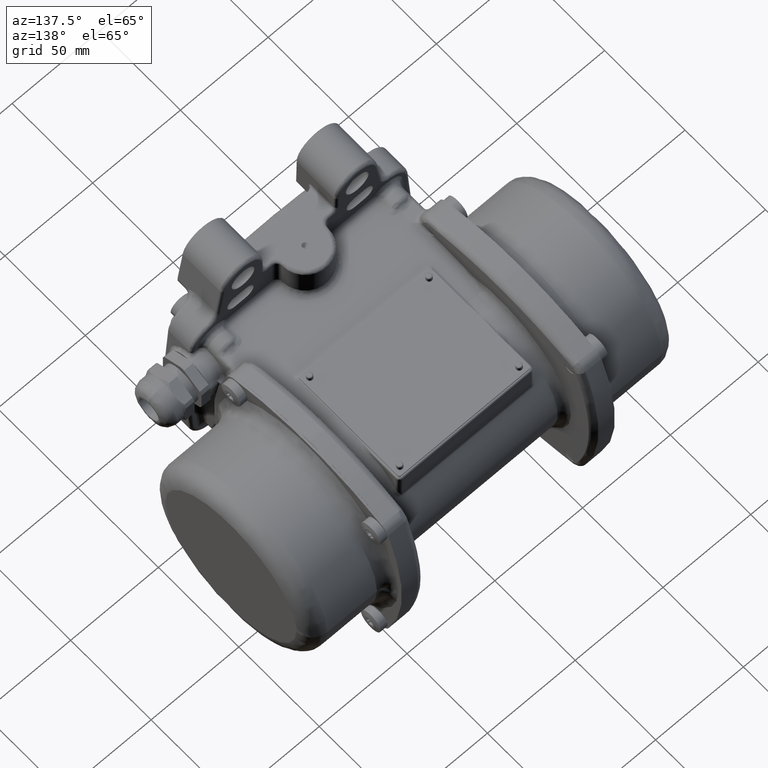
[diagram: clean part render]
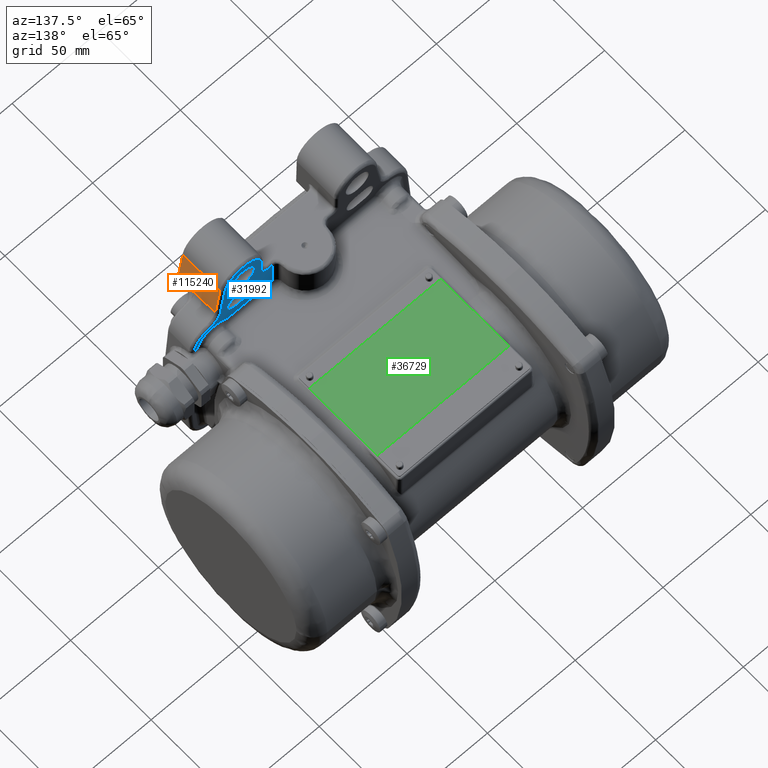
[diagram: same view with three faces highlighted in distinct colors, each labeled with its STEP entity id]
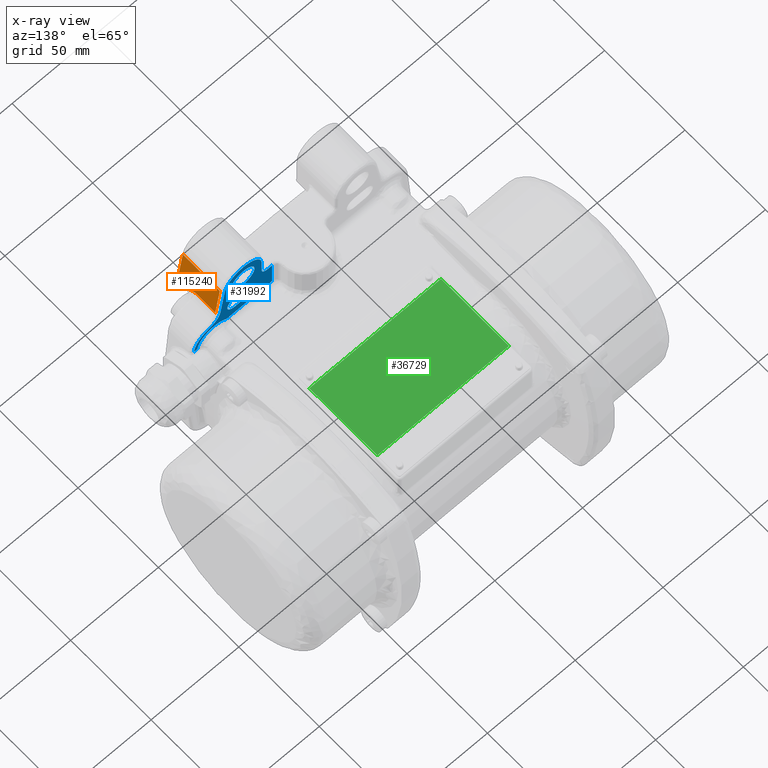
[diagram: x-ray of the same camera — body ghosted, the three highlighted faces saturated]
A machine part, auxiliary view with three faces highlighted in distinct colors.
The next image is the same camera in x-ray (body ghosted, the three faces saturated) — at least one of them is partly hidden behind the body in this view.
Their STEP definitions:

[orange] entity #115240 — the highlighted planar face has unit normal (-0.989, -0, -0.1478).
#15651 = ORIENTED_EDGE ( 'NONE', *, *, #183779, .F. ) ;
#17537 = CARTESIAN_POINT ( 'NONE',  ( 46.99434318488923900, -85.00000000000000000, 54.20171407881812100 ) ) ;
#18306 = CARTESIAN_POINT ( 'NONE',  ( 47.32451888954725700, -71.00000000000002800, 51.99245685285470800 ) ) ;
#19754 = EDGE_CURVE ( 'NONE', #136487, #172394, #90074, .T. ) ;
#24012 = CARTESIAN_POINT ( 'NONE',  ( 47.04793684488174000, -85.87407511055901900, 53.84311052642494400 ) ) ;
#24329 = CARTESIAN_POINT ( 'NONE',  ( 46.99434318488923900, -72.50000000000001400, 54.20171407881811400 ) ) ;
#30114 = DIRECTION ( 'NONE',  ( -0.1478094111296107700, 9.622817002989612100E-018, 0.9890158633619168200 ) ) ;
#38346 = CARTESIAN_POINT ( 'NONE',  ( 47.08214924535966600, -86.39248283628521100, 53.61419000953926400 ) ) ;
#39582 = CARTESIAN_POINT ( 'NONE',  ( 47.25113467238541200, -88.33731775680510600, 52.48348211531119000 ) ) ;
#39600 = DIRECTION ( 'NONE',  ( 2.775557561562899400E-017, -1.000000000000000000, 1.387778780781445100E-017 ) ) ;
#47011 = LINE ( 'NONE', #158257, #87164 ) ;
#52645 = CARTESIAN_POINT ( 'NONE',  ( 47.11908256495993200, -86.90254085200375300, 53.36706339769426700 ) ) ;
#57706 = B_SPLINE_CURVE_WITH_KNOTS ( 'NONE', 3,
 ( #150963, #136068, #80623, #94926, #24012, #123619, #38346, #137913, #52645, #63892, #163400, #39582, #167667, #81250 ),
 .UNSPECIFIED., .F., .F.,
 ( 4, 2, 2, 2, 2, 2, 4 ),
 ( 0.0000000000000000000, 0.1250000000000000600, 0.2500000000000000000, 0.3749999999999999400, 0.5000000000000000000, 0.7499999999999998900, 1.000000000000000000 ),
 .UNSPECIFIED. ) ;
#57740 = AXIS2_PLACEMENT_3D ( 'NONE', #112030, #96442, #126415 ) ;
#60048 = EDGE_CURVE ( 'NONE', #89641, #136487, #47011, .T. ) ;
#63892 = CARTESIAN_POINT ( 'NONE',  ( 47.15871986394428500, -87.40071299531911100, 53.10184403732491600 ) ) ;
#69764 = FACE_OUTER_BOUND ( 'NONE', #72196, .T. ) ;
#72196 = EDGE_LOOP ( 'NONE', ( #129959, #159921, #15651, #175367, #164455, #155787 ) ) ;
#72404 = LINE ( 'NONE', #181412, #123713 ) ;
#80623 = CARTESIAN_POINT ( 'NONE',  ( 47.01548820278301100, -85.35040900789506700, 54.06022946042876500 ) ) ;
#81250 = CARTESIAN_POINT ( 'NONE',  ( 47.32451888954724200, -88.90819106013168500, 51.99245685285470100 ) ) ;
#87164 = VECTOR ( 'NONE', #30114, 1000.000000000000000 ) ;
#87938 = VECTOR ( 'NONE', #179365, 1000.000000000000000 ) ;
#88422 = EDGE_CURVE ( 'NONE', #147042, #89641, #123403, .T. ) ;
#89641 = VERTEX_POINT ( 'NONE', #112378 ) ;
#89860 = DIRECTION ( 'NONE',  ( 2.775557561562899400E-017, -1.000000000000000000, 1.387778780781445100E-017 ) ) ;
#90074 = LINE ( 'NONE', #148339, #87938 ) ;
#94046 = CARTESIAN_POINT ( 'NONE',  ( 44.36819036034301400, -72.50000000000001400, 71.77371293355533100 ) ) ;
#94926 = CARTESIAN_POINT ( 'NONE',  ( 47.03700057339051500, -85.69987767603029700, 53.91628682763742800 ) ) ;
#96213 = LINE ( 'NONE', #114070, #98538 ) ;
#96442 = DIRECTION ( 'NONE',  ( -0.9890158633619168200, -2.950197222425285800E-017, -0.1478094111296107700 ) ) ;
#98351 = CARTESIAN_POINT ( 'NONE',  ( 44.36819036034301400, -95.49999999999994300, 71.77371293355533100 ) ) ;
#98538 = VECTOR ( 'NONE', #142708, 1000.000000000000000 ) ;
#98920 = PLANE ( 'NONE',  #57740 ) ;
#100797 = VERTEX_POINT ( 'NONE', #17537 ) ;
#112030 = CARTESIAN_POINT ( 'NONE',  ( 44.36819036034302100, -71.00000000000002800, 71.77371293355533100 ) ) ;
#112378 = CARTESIAN_POINT ( 'NONE',  ( 47.32451888954725000, -95.49999999999994300, 51.99245685285469400 ) ) ;
#112521 = CARTESIAN_POINT ( 'NONE',  ( 47.32451888954724200, -88.90819106013168500, 51.99245685285470100 ) ) ;
#114070 = CARTESIAN_POINT ( 'NONE',  ( 42.94809492914167500, -72.50000000000001400, 81.27579333704429100 ) ) ;
#115240 = ADVANCED_FACE ( 'NONE', ( #69764 ), #98920, .F. ) ;
#123403 = LINE ( 'NONE', #18306, #172423 ) ;
#123619 = CARTESIAN_POINT ( 'NONE',  ( 47.07051107077903400, -86.22037801889754900, 53.69206285398718100 ) ) ;
#123713 = VECTOR ( 'NONE', #39600, 1000.000000000000000 ) ;
#126415 = DIRECTION ( 'NONE',  ( 0.1478094111296107700, -9.622817002989612100E-018, -0.9890158633619168200 ) ) ;
#129959 = ORIENTED_EDGE ( 'NONE', *, *, #132190, .F. ) ;
#132190 = EDGE_CURVE ( 'NONE', #100797, #147042, #57706, .T. ) ;
#136068 = CARTESIAN_POINT ( 'NONE',  ( 47.00490561709907700, -85.17503919271460700, 54.13103919464537500 ) ) ;
#136487 = VERTEX_POINT ( 'NONE', #98351 ) ;
#137913 = CARTESIAN_POINT ( 'NONE',  ( 47.10644103397325500, -86.73366509301978100, 53.45164985661764200 ) ) ;
#142708 = DIRECTION ( 'NONE',  ( 0.1478094111296107700, -9.622817002989612100E-018, -0.9890158633619168200 ) ) ;
#147042 = VERTEX_POINT ( 'NONE', #112521 ) ;
#148339 = CARTESIAN_POINT ( 'NONE',  ( 44.36819036034301400, -71.00000000000002800, 71.77371293355533100 ) ) ;
#150963 = CARTESIAN_POINT ( 'NONE',  ( 46.99434318488923900, -85.00000000000000000, 54.20171407881812100 ) ) ;
#155046 = VERTEX_POINT ( 'NONE', #24329 ) ;
#155787 = ORIENTED_EDGE ( 'NONE', *, *, #88422, .F. ) ;
#157294 = EDGE_CURVE ( 'NONE', #155046, #100797, #72404, .T. ) ;
#158257 = CARTESIAN_POINT ( 'NONE',  ( 44.36819036034302100, -95.49999999999994300, 71.77371293355533100 ) ) ;
#159921 = ORIENTED_EDGE ( 'NONE', *, *, #157294, .F. ) ;
#163400 = CARTESIAN_POINT ( 'NONE',  ( 47.18748828656503500, -87.72217321279703100, 52.90935002683955400 ) ) ;
#164455 = ORIENTED_EDGE ( 'NONE', *, *, #60048, .F. ) ;
#167667 = CARTESIAN_POINT ( 'NONE',  ( 47.28599500907208200, -88.63108501191389600, 52.25022615602030400 ) ) ;
#172394 = VERTEX_POINT ( 'NONE', #94046 ) ;
#172423 = VECTOR ( 'NONE', #89860, 1000.000000000000000 ) ;
#175367 = ORIENTED_EDGE ( 'NONE', *, *, #19754, .F. ) ;
#179365 = DIRECTION ( 'NONE',  ( -2.775557561562899400E-017, 1.000000000000000000, -1.387778780781445100E-017 ) ) ;
#181412 = CARTESIAN_POINT ( 'NONE',  ( 46.99434318488923200, -71.00000000000002800, 54.20171407881811400 ) ) ;
#183779 = EDGE_CURVE ( 'NONE', #172394, #155046, #96213, .T. ) ;

[blue] entity #31992 — the highlighted planar face has unit normal (0, -1, 0).
#876 = DIRECTION ( 'NONE',  ( -1.000000000000000000, -2.775557561562882700E-017, 1.387778780781445100E-017 ) ) ;
#1479 = LINE ( 'NONE', #130275, #103752 ) ;
#2304 = VERTEX_POINT ( 'NONE', #78115 ) ;
#2370 = CARTESIAN_POINT ( 'NONE',  ( 45.51081938984636100, -71.00000000000001400, 53.97999996212369900 ) ) ;
#2540 = CARTESIAN_POINT ( 'NONE',  ( 16.00000000000000400, -71.00000000000002800, 70.00000000000000000 ) ) ;
#4624 = LINE ( 'NONE', #114555, #102658 ) ;
#6344 = CARTESIAN_POINT ( 'NONE',  ( 45.98944135709812300, -71.00000000000001400, 50.77746560015129500 ) ) ;
#6560 = VECTOR ( 'NONE', #876, 1000.000000000000000 ) ;
#7488 = CARTESIAN_POINT ( 'NONE',  ( -32.50000000000000700, -71.00000000000002800, 70.00000000000000000 ) ) ;
#8321 = EDGE_LOOP ( 'NONE', ( #88247, #82913, #113903, #125622 ) ) ;
#8720 =( BOUNDED_CURVE ( )  B_SPLINE_CURVE ( 3, ( #55650, #114731, #184430, #29478 ),
 .UNSPECIFIED., .F., .F. ) 
 B_SPLINE_CURVE_WITH_KNOTS ( ( 4, 4 ),
 ( 0.0000000000000000000, 1.000000000000000000 ),
 .UNSPECIFIED. ) 
 CURVE ( )  GEOMETRIC_REPRESENTATION_ITEM ( )  RATIONAL_B_SPLINE_CURVE ( ( 1.000000000000000000, 0.3885388050081342600, 0.3885388050081342600, 1.000000000000000000 ) ) 
 REPRESENTATION_ITEM ( '' )  );
#9340 = VERTEX_POINT ( 'NONE', #88595 ) ;
#12678 = VERTEX_POINT ( 'NONE', #183102 ) ;
#12960 = ORIENTED_EDGE ( 'NONE', *, *, #136612, .F. ) ;
#14405 = ORIENTED_EDGE ( 'NONE', *, *, #140360, .F. ) ;
#18286 = CARTESIAN_POINT ( 'NONE',  ( 16.00000000000000400, -71.00000000000001400, 58.50000000000000000 ) ) ;
#18996 = CARTESIAN_POINT ( 'NONE',  ( 60.43084051008342800, -71.00000000000001400, 37.75589737428656900 ) ) ;
#20230 = VERTEX_POINT ( 'NONE', #126521 ) ;
#22426 = DIRECTION ( 'NONE',  ( -1.387778780781445100E-017, -1.387778780781445100E-017, -1.000000000000000000 ) ) ;
#23161 = EDGE_CURVE ( 'NONE', #48002, #74850, #113404, .T. ) ;
#24085 = CARTESIAN_POINT ( 'NONE',  ( 32.50000000000000700, -71.00000000002637500, 76.49999999999941700 ) ) ;
#24989 = VERTEX_POINT ( 'NONE', #105166 ) ;
#25538 = CARTESIAN_POINT ( 'NONE',  ( -32.50000000000000700, -71.00000000000002800, 48.49999999999999300 ) ) ;
#25708 = VERTEX_POINT ( 'NONE', #162041 ) ;
#27698 =( BOUNDED_CURVE ( )  B_SPLINE_CURVE ( 3, ( #90305, #163114, #6344, #77278 ),
 .UNSPECIFIED., .F., .F. ) 
 B_SPLINE_CURVE_WITH_KNOTS ( ( 4, 4 ),
 ( 0.0000000000000000000, 1.000000000000000000 ),
 .UNSPECIFIED. ) 
 CURVE ( )  GEOMETRIC_REPRESENTATION_ITEM ( )  RATIONAL_B_SPLINE_CURVE ( ( 1.000000000000000000, 0.8808771055075738100, 0.8808771055075738100, 1.000000000000000000 ) ) 
 REPRESENTATION_ITEM ( '' )  );
#28376 = ORIENTED_EDGE ( 'NONE', *, *, #132488, .F. ) ;
#29478 = CARTESIAN_POINT ( 'NONE',  ( 22.00159920085790000, -71.00000000000001400, 70.18325026759141800 ) ) ;
#31038 =( BOUNDED_CURVE ( )  B_SPLINE_CURVE ( 3, ( #18996, #45831, #60764, #104900 ),
 .UNSPECIFIED., .F., .F. ) 
 B_SPLINE_CURVE_WITH_KNOTS ( ( 4, 4 ),
 ( 0.0000000000000000000, 1.000000000000000000 ),
 .UNSPECIFIED. ) 
 CURVE ( )  GEOMETRIC_REPRESENTATION_ITEM ( )  RATIONAL_B_SPLINE_CURVE ( ( 1.000000000000000000, 0.8733855964345265100, 0.8733855964345265100, 1.000000000000000000 ) ) 
 REPRESENTATION_ITEM ( '' )  );
#31501 = ORIENTED_EDGE ( 'NONE', *, *, #45255, .F. ) ;
#31763 = VERTEX_POINT ( 'NONE', #157560 ) ;
#31992 = ADVANCED_FACE ( 'NONE', ( #183596, #98936, #174618 ), #94577, .F. ) ;
#33749 = EDGE_CURVE ( 'NONE', #125019, #36199, #158624, .T. ) ;
#36199 = VERTEX_POINT ( 'NONE', #70721 ) ;
#36530 = LINE ( 'NONE', #183055, #110101 ) ;
#37016 = VECTOR ( 'NONE', #104092, 1000.000000000000100 ) ;
#39393 = EDGE_CURVE ( 'NONE', #83655, #134408, #67997, .T. ) ;
#39543 = CARTESIAN_POINT ( 'NONE',  ( 18.35822688795961700, -71.00000000000001400, 58.50000000000000000 ) ) ;
#39985 = LINE ( 'NONE', #59353, #6560 ) ;
#40077 = DIRECTION ( 'NONE',  ( -2.775557561562899400E-017, 1.000000000000000000, -1.387778780781445100E-017 ) ) ;
#40281 = CIRCLE ( 'NONE', #98420, 4.499999999999934300 ) ;
#40838 = CARTESIAN_POINT ( 'NONE',  ( 37.00000000000000700, -71.00000000002631900, 52.99999999999999300 ) ) ;
#42037 = EDGE_CURVE ( 'NONE', #134408, #60933, #60527, .T. ) ;
#42463 = CARTESIAN_POINT ( 'NONE',  ( -32.50000000000000700, -71.00000000000002800, 57.49999999999998600 ) ) ;
#42836 = EDGE_CURVE ( 'NONE', #120865, #2304, #149460, .T. ) ;
#44160 = ORIENTED_EDGE ( 'NONE', *, *, #152078, .F. ) ;
#44942 = CARTESIAN_POINT ( 'NONE',  ( 31.00000000000000700, -70.99999999997712100, 48.50000000000029100 ) ) ;
#45255 = EDGE_CURVE ( 'NONE', #25708, #24989, #1479, .T. ) ;
#45831 = CARTESIAN_POINT ( 'NONE',  ( 59.86840442097680200, -71.00000000000000000, 42.87186368016606500 ) ) ;
#46918 = EDGE_CURVE ( 'NONE', #36199, #25708, #8720, .T. ) ;
#48002 = VERTEX_POINT ( 'NONE', #114120 ) ;
#48871 = EDGE_CURVE ( 'NONE', #143968, #53304, #143896, .T. ) ;
#49124 = VECTOR ( 'NONE', #86593, 1000.000000000000000 ) ;
#52608 = CARTESIAN_POINT ( 'NONE',  ( 21.82240519879662300, -71.00000000000001400, 59.91723276503503100 ) ) ;
#53304 = VERTEX_POINT ( 'NONE', #177532 ) ;
#55650 = CARTESIAN_POINT ( 'NONE',  ( 42.88466656530014400, -71.00000000000001400, 71.55199881686091600 ) ) ;
#59353 = CARTESIAN_POINT ( 'NONE',  ( -32.50000000000000700, -71.00000000000001400, 43.00000000000000700 ) ) ;
#60527 = CIRCLE ( 'NONE', #91552, 4.499999999999934300 ) ;
#60764 = CARTESIAN_POINT ( 'NONE',  ( 56.41318565198803000, -71.00000000000000000, 46.68642903622588100 ) ) ;
#60933 = VERTEX_POINT ( 'NONE', #81392 ) ;
#61200 = CARTESIAN_POINT ( 'NONE',  ( -32.50000000000000700, -71.00000000000002800, 36.99137674618943100 ) ) ;
#63377 = ORIENTED_EDGE ( 'NONE', *, *, #154855, .F. ) ;
#63663 = DIRECTION ( 'NONE',  ( 0.0000000000000000000, 0.0000000000000000000, -1.000000000000000000 ) ) ;
#67512 = CARTESIAN_POINT ( 'NONE',  ( 21.85769382100699300, -71.00000000000001400, 61.93891657746952700 ) ) ;
#67997 = LINE ( 'NONE', #25538, #119279 ) ;
#70051 = DIRECTION ( 'NONE',  ( -2.775557561562899400E-017, 1.000000000000000000, -1.387778780781445100E-017 ) ) ;
#70398 = LINE ( 'NONE', #173177, #37016 ) ;
#70721 = CARTESIAN_POINT ( 'NONE',  ( 42.88466656530014400, -71.00000000000001400, 71.55199881686091600 ) ) ;
#70976 = DIRECTION ( 'NONE',  ( -2.775557561562899400E-017, 1.000000000000000000, -1.387778780781445100E-017 ) ) ;
#73836 = AXIS2_PLACEMENT_3D ( 'NONE', #133983, #147671, #63663 ) ;
#74850 = VERTEX_POINT ( 'NONE', #24085 ) ;
#75031 = EDGE_CURVE ( 'NONE', #9340, #83655, #40281, .T. ) ;
#75050 = CARTESIAN_POINT ( 'NONE',  ( 18.35822688795961700, -71.00000000000001400, 58.50000000000000000 ) ) ;
#77278 = CARTESIAN_POINT ( 'NONE',  ( 45.51081938984636100, -71.00000000000001400, 53.97999996212369900 ) ) ;
#77675 = VERTEX_POINT ( 'NONE', #75050 ) ;
#78115 = CARTESIAN_POINT ( 'NONE',  ( 60.51402889317558500, -71.00000000000001400, 36.99137674618942400 ) ) ;
#79571 = CARTESIAN_POINT ( 'NONE',  ( 42.07230995456600200, -71.00000000000001400, 43.00000000000000700 ) ) ;
#80708 = EDGE_CURVE ( 'NONE', #143968, #20230, #39985, .T. ) ;
#81392 = CARTESIAN_POINT ( 'NONE',  ( 31.00000000000001100, -71.00000000001315900, 57.50000000000010700 ) ) ;
#82307 = AXIS2_PLACEMENT_3D ( 'NONE', #125357, #40077, #138416 ) ;
#82913 = ORIENTED_EDGE ( 'NONE', *, *, #42037, .F. ) ;
#83655 = VERTEX_POINT ( 'NONE', #151626 ) ;
#83757 = DIRECTION ( 'NONE',  ( 0.0000000000000000000, 0.0000000000000000000, -1.000000000000000000 ) ) ;
#86593 = DIRECTION ( 'NONE',  ( 1.000000000000000000, 2.775557561562882700E-017, -1.387778780781445100E-017 ) ) ;
#87910 = DIRECTION ( 'NONE',  ( 1.000000000000000000, 2.775557561562882700E-017, -1.387778780781445100E-017 ) ) ;
#88247 = ORIENTED_EDGE ( 'NONE', *, *, #90970, .F. ) ;
#88595 = CARTESIAN_POINT ( 'NONE',  ( 36.99999999999999300, -70.99999999997712100, 57.49999999999965900 ) ) ;
#89235 = LINE ( 'NONE', #42463, #49124 ) ;
#90305 = CARTESIAN_POINT ( 'NONE',  ( 51.37762559398836300, -71.00000000000001400, 47.75065669020889200 ) ) ;
#90970 = EDGE_CURVE ( 'NONE', #60933, #9340, #89235, .T. ) ;
#91552 = AXIS2_PLACEMENT_3D ( 'NONE', #156198, #70976, #99582 ) ;
#94577 = PLANE ( 'NONE',  #184260 ) ;
#97357 = CIRCLE ( 'NONE', #73836, 6.499999999999395200 ) ;
#98420 = AXIS2_PLACEMENT_3D ( 'NONE', #40838, #70051, #83757 ) ;
#98936 = FACE_BOUND ( 'NONE', #8321, .T. ) ;
#99582 = DIRECTION ( 'NONE',  ( 0.0000000000000000000, 0.0000000000000000000, -1.000000000000000000 ) ) ;
#100910 = ORIENTED_EDGE ( 'NONE', *, *, #48871, .F. ) ;
#102658 = VECTOR ( 'NONE', #127688, 1000.000000000000100 ) ;
#103752 = VECTOR ( 'NONE', #174320, 1000.000000000000100 ) ;
#103793 = EDGE_LOOP ( 'NONE', ( #130134, #146757, #100910, #105727, #14405, #179009, #44160, #31501, #161457, #172187, #63377, #144107, #12960 ) ) ;
#104092 = DIRECTION ( 'NONE',  ( -0.1084854908605851100, 1.078480431078676800E-017, 0.9940980325263387700 ) ) ;
#104900 = CARTESIAN_POINT ( 'NONE',  ( 51.37762559398836300, -71.00000000000001400, 47.75065669020889200 ) ) ;
#105166 = CARTESIAN_POINT ( 'NONE',  ( 21.85769382100699300, -71.00000000000001400, 61.93891657746952700 ) ) ;
#105727 = ORIENTED_EDGE ( 'NONE', *, *, #80708, .T. ) ;
#106202 = DIRECTION ( 'NONE',  ( -0.1478094111296113000, 9.622817002989596700E-018, 0.9890158633619168200 ) ) ;
#110101 = VECTOR ( 'NONE', #112729, 1000.000000000000000 ) ;
#110854 = CARTESIAN_POINT ( 'NONE',  ( 58.44273118149199300, -71.00000000000001400, 37.53813159073633400 ) ) ;
#111471 = CARTESIAN_POINT ( 'NONE',  ( 42.07230995456600200, -71.00000000000001400, 43.00000000000000700 ) ) ;
#112729 = DIRECTION ( 'NONE',  ( -1.000000000000000000, -2.775557561562882700E-017, 1.387778780781445100E-017 ) ) ;
#113404 = CIRCLE ( 'NONE', #82307, 6.499999999999395200 ) ;
#113903 = ORIENTED_EDGE ( 'NONE', *, *, #39393, .F. ) ;
#114120 = CARTESIAN_POINT ( 'NONE',  ( 32.50000000000000700, -71.00000000002637500, 63.50000000000062500 ) ) ;
#114555 = CARTESIAN_POINT ( 'NONE',  ( 60.43084051008339900, -71.00000000000002800, 37.75589737428658300 ) ) ;
#114731 = CARTESIAN_POINT ( 'NONE',  ( 40.23084587289243100, -71.00000000000001400, 89.30912769824058700 ) ) ;
#117018 = DIRECTION ( 'NONE',  ( -1.387778780781445100E-017, -1.387778780781445100E-017, -1.000000000000000000 ) ) ;
#117874 =( BOUNDED_CURVE ( )  B_SPLINE_CURVE ( 3, ( #67512, #52608, #123589, #39543 ),
 .UNSPECIFIED., .F., .F. ) 
 B_SPLINE_CURVE_WITH_KNOTS ( ( 4, 4 ),
 ( 0.0000000000000000000, 1.000000000000000000 ),
 .UNSPECIFIED. ) 
 CURVE ( )  GEOMETRIC_REPRESENTATION_ITEM ( )  RATIONAL_B_SPLINE_CURVE ( ( 1.000000000000000000, 0.8088336327694534100, 0.8088336327694534100, 1.000000000000000000 ) ) 
 REPRESENTATION_ITEM ( '' )  );
#118066 = CARTESIAN_POINT ( 'NONE',  ( 45.51081938984636100, -71.00000000000002800, 53.97999996212369900 ) ) ;
#119279 = VECTOR ( 'NONE', #125791, 1000.000000000000000 ) ;
#120865 = VERTEX_POINT ( 'NONE', #146497 ) ;
#121754 = VERTEX_POINT ( 'NONE', #18286 ) ;
#123589 = CARTESIAN_POINT ( 'NONE',  ( 20.38021865953466600, -71.00000000000001400, 58.50000000000000000 ) ) ;
#125019 = VERTEX_POINT ( 'NONE', #2370 ) ;
#125357 = CARTESIAN_POINT ( 'NONE',  ( 32.50000000000000700, -71.00000000002637500, 70.00000000000001400 ) ) ;
#125622 = ORIENTED_EDGE ( 'NONE', *, *, #75031, .F. ) ;
#125791 = DIRECTION ( 'NONE',  ( -1.000000000000000000, -2.775557561562882700E-017, 1.387778780781445100E-017 ) ) ;
#126521 = CARTESIAN_POINT ( 'NONE',  ( 16.00000000000000400, -71.00000000000001400, 43.00000000000000700 ) ) ;
#127688 = DIRECTION ( 'NONE',  ( -0.1081726778752738100, 1.079395967220481800E-017, 0.9941321198720480800 ) ) ;
#130134 = ORIENTED_EDGE ( 'NONE', *, *, #42836, .F. ) ;
#130275 = CARTESIAN_POINT ( 'NONE',  ( 22.00159920085790000, -71.00000000000002800, 70.18325026759141800 ) ) ;
#132488 = EDGE_CURVE ( 'NONE', #74850, #48002, #97357, .T. ) ;
#133983 = CARTESIAN_POINT ( 'NONE',  ( 32.50000000000000700, -71.00000000002637500, 70.00000000000001400 ) ) ;
#134408 = VERTEX_POINT ( 'NONE', #44942 ) ;
#136612 = EDGE_CURVE ( 'NONE', #2304, #12678, #4624, .T. ) ;
#138416 = DIRECTION ( 'NONE',  ( 0.0000000000000000000, 0.0000000000000000000, -1.000000000000000000 ) ) ;
#140360 = EDGE_CURVE ( 'NONE', #121754, #20230, #183920, .T. ) ;
#143896 =( BOUNDED_CURVE ( )  B_SPLINE_CURVE ( 3, ( #111471, #153176, #179948, #110854 ),
 .UNSPECIFIED., .F., .T. ) 
 B_SPLINE_CURVE_WITH_KNOTS ( ( 4, 4 ),
 ( 0.0000000000000000000, 1.000000000000000000 ),
 .UNSPECIFIED. ) 
 CURVE ( )  GEOMETRIC_REPRESENTATION_ITEM ( )  RATIONAL_B_SPLINE_CURVE ( ( 1.000000000000000000, 0.6121732896406653100, 0.6121732896406653100, 1.000000000000000000 ) ) 
 REPRESENTATION_ITEM ( '' )  );
#143968 = VERTEX_POINT ( 'NONE', #79571 ) ;
#144107 = ORIENTED_EDGE ( 'NONE', *, *, #154381, .F. ) ;
#146497 = CARTESIAN_POINT ( 'NONE',  ( 58.50239830259104000, -71.00000000000001400, 36.99137674618940300 ) ) ;
#146757 = ORIENTED_EDGE ( 'NONE', *, *, #172281, .T. ) ;
#147671 = DIRECTION ( 'NONE',  ( -2.775557561562899400E-017, 1.000000000000000000, -1.387778780781445100E-017 ) ) ;
#149460 = LINE ( 'NONE', #61200, #164965 ) ;
#149739 = VECTOR ( 'NONE', #106202, 999.9999999999998900 ) ;
#150629 = DIRECTION ( 'NONE',  ( 2.775557561562899400E-017, -1.000000000000000000, 1.387778780781445100E-017 ) ) ;
#151626 = CARTESIAN_POINT ( 'NONE',  ( 37.00000000000000700, -71.00000000000554200, 48.50000000000007100 ) ) ;
#152078 = EDGE_CURVE ( 'NONE', #24989, #77675, #117874, .T. ) ;
#153176 = CARTESIAN_POINT ( 'NONE',  ( 48.50200131008791300, -71.00000000000002800, 49.85275519982493400 ) ) ;
#154381 = EDGE_CURVE ( 'NONE', #12678, #31763, #31038, .T. ) ;
#154855 = EDGE_CURVE ( 'NONE', #31763, #125019, #27698, .T. ) ;
#156198 = CARTESIAN_POINT ( 'NONE',  ( 31.00000000000001100, -71.00000000002631900, 52.99999999999999300 ) ) ;
#157560 = CARTESIAN_POINT ( 'NONE',  ( 51.37762559398836300, -71.00000000000001400, 47.75065669020889200 ) ) ;
#157849 = EDGE_CURVE ( 'NONE', #77675, #121754, #36530, .T. ) ;
#158151 = EDGE_LOOP ( 'NONE', ( #164678, #28376 ) ) ;
#158624 = LINE ( 'NONE', #118066, #149739 ) ;
#161457 = ORIENTED_EDGE ( 'NONE', *, *, #46918, .F. ) ;
#161581 = VECTOR ( 'NONE', #117018, 1000.000000000000000 ) ;
#162041 = CARTESIAN_POINT ( 'NONE',  ( 22.00159920085790000, -71.00000000000001400, 70.18325026759141800 ) ) ;
#163114 = CARTESIAN_POINT ( 'NONE',  ( 48.20950367432736500, -71.00000000000001400, 48.42021537271070000 ) ) ;
#164678 = ORIENTED_EDGE ( 'NONE', *, *, #23161, .F. ) ;
#164965 = VECTOR ( 'NONE', #87910, 1000.000000000000000 ) ;
#172187 = ORIENTED_EDGE ( 'NONE', *, *, #33749, .F. ) ;
#172281 = EDGE_CURVE ( 'NONE', #120865, #53304, #70398, .T. ) ;
#173177 = CARTESIAN_POINT ( 'NONE',  ( 58.50239830259106800, -71.00000000000002800, 36.99137674618935300 ) ) ;
#174320 = DIRECTION ( 'NONE',  ( -0.01745240643727601100, -1.436007574005725100E-017, -0.9998476951563913800 ) ) ;
#174618 = FACE_OUTER_BOUND ( 'NONE', #103793, .T. ) ;
#177532 = CARTESIAN_POINT ( 'NONE',  ( 58.44273118149199300, -71.00000000000001400, 37.53813159073633400 ) ) ;
#179009 = ORIENTED_EDGE ( 'NONE', *, *, #157849, .F. ) ;
#179948 = CARTESIAN_POINT ( 'NONE',  ( 57.41582876382251800, -71.00000000000002800, 46.87872344460645000 ) ) ;
#183055 = CARTESIAN_POINT ( 'NONE',  ( -32.50000000000000700, -71.00000000000002800, 58.50000000000000000 ) ) ;
#183102 = CARTESIAN_POINT ( 'NONE',  ( 60.43084051008342800, -71.00000000000001400, 37.75589737428656900 ) ) ;
#183596 = FACE_BOUND ( 'NONE', #158151, .T. ) ;
#183920 = LINE ( 'NONE', #2540, #161581 ) ;
#184260 = AXIS2_PLACEMENT_3D ( 'NONE', #7488, #150629, #22426 ) ;
#184430 = CARTESIAN_POINT ( 'NONE',  ( 22.31494567170571100, -71.00000000000001400, 88.13485755960252300 ) ) ;

[green] entity #36729 — the highlighted planar face has unit normal (-0, 0, 1).
#3427 = ORIENTED_EDGE ( 'NONE', *, *, #89420, .F. ) ;
#8485 = CARTESIAN_POINT ( 'NONE',  ( 37.50000000000000700, 17.89999999999999900, 41.49999999999994300 ) ) ;
#9843 = DIRECTION ( 'NONE',  ( 1.101411730778925200E-016, -1.000000000000000000, 0.0000000000000000000 ) ) ;
#16044 = EDGE_CURVE ( 'NONE', #27944, #159361, #90031, .T. ) ;
#25424 = ORIENTED_EDGE ( 'NONE', *, *, #63560, .T. ) ;
#27944 = VERTEX_POINT ( 'NONE', #34170 ) ;
#34170 = CARTESIAN_POINT ( 'NONE',  ( -37.50000000000000700, 17.89999999999999100, 41.49999999999994300 ) ) ;
#36729 = ADVANCED_FACE ( 'NONE', ( #75599 ), #59023, .T. ) ;
#37260 = CARTESIAN_POINT ( 'NONE',  ( -37.50000000000000700, 31.50000000000000000, 41.49999999999994300 ) ) ;
#40688 = VECTOR ( 'NONE', #134878, 1000.000000000000000 ) ;
#45290 = DIRECTION ( 'NONE',  ( 1.000000000000000000, 0.0000000000000000000, 0.0000000000000000000 ) ) ;
#51752 = LINE ( 'NONE', #77613, #40688 ) ;
#51753 = ORIENTED_EDGE ( 'NONE', *, *, #16044, .T. ) ;
#52080 = DIRECTION ( 'NONE',  ( 1.000000000000000000, 9.251858538542970300E-017, -0.0000000000000000000 ) ) ;
#55966 = VERTEX_POINT ( 'NONE', #145978 ) ;
#59023 = PLANE ( 'NONE',  #160037 ) ;
#63560 = EDGE_CURVE ( 'NONE', #55966, #88691, #141490, .T. ) ;
#75599 = FACE_OUTER_BOUND ( 'NONE', #175676, .T. ) ;
#77613 = CARTESIAN_POINT ( 'NONE',  ( -37.50000000000000700, -24.30000000000000100, 41.49999999999994300 ) ) ;
#88691 = VERTEX_POINT ( 'NONE', #100925 ) ;
#89363 = EDGE_CURVE ( 'NONE', #55966, #159361, #51752, .T. ) ;
#89420 = EDGE_CURVE ( 'NONE', #27944, #88691, #98704, .T. ) ;
#90031 = LINE ( 'NONE', #37260, #165773 ) ;
#94021 = VECTOR ( 'NONE', #52080, 1000.000000000000000 ) ;
#97309 = DIRECTION ( 'NONE',  ( 1.101411730778925200E-016, 1.000000000000000000, -0.0000000000000000000 ) ) ;
#98704 = LINE ( 'NONE', #8485, #94021 ) ;
#100670 = DIRECTION ( 'NONE',  ( -0.0000000000000000000, 0.0000000000000000000, 1.000000000000000000 ) ) ;
#100925 = CARTESIAN_POINT ( 'NONE',  ( 37.50000000000000700, 17.89999999999999900, 41.49999999999994300 ) ) ;
#112891 = CARTESIAN_POINT ( 'NONE',  ( 37.50000000000000700, 31.50000000000000000, 41.49999999999994300 ) ) ;
#114304 = ORIENTED_EDGE ( 'NONE', *, *, #89363, .F. ) ;
#134878 = DIRECTION ( 'NONE',  ( -1.000000000000000000, 2.312964634635742600E-017, -0.0000000000000000000 ) ) ;
#141490 = LINE ( 'NONE', #112891, #152574 ) ;
#145978 = CARTESIAN_POINT ( 'NONE',  ( 37.50000000000000000, -24.30000000000000100, 41.49999999999994300 ) ) ;
#152574 = VECTOR ( 'NONE', #97309, 1000.000000000000000 ) ;
#157315 = CARTESIAN_POINT ( 'NONE',  ( -37.50000000000000000, -31.50000000000000000, 41.49999999999994300 ) ) ;
#159361 = VERTEX_POINT ( 'NONE', #177811 ) ;
#160037 = AXIS2_PLACEMENT_3D ( 'NONE', #157315, #100670, #45290 ) ;
#165773 = VECTOR ( 'NONE', #9843, 1000.000000000000000 ) ;
#175676 = EDGE_LOOP ( 'NONE', ( #114304, #25424, #3427, #51753 ) ) ;
#177811 = CARTESIAN_POINT ( 'NONE',  ( -37.50000000000000000, -24.30000000000000100, 41.49999999999994300 ) ) ;